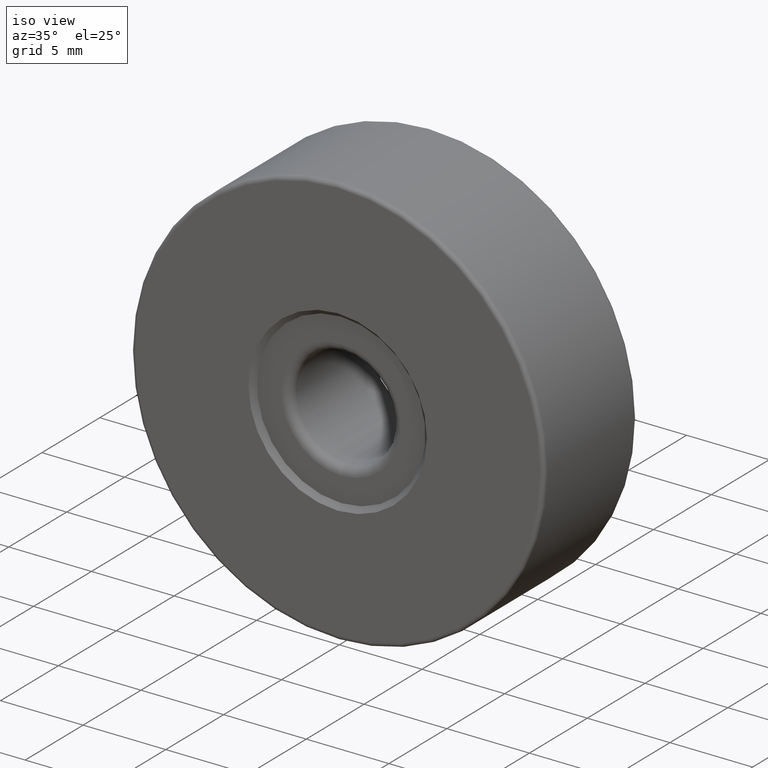
[diagram: clean part render]
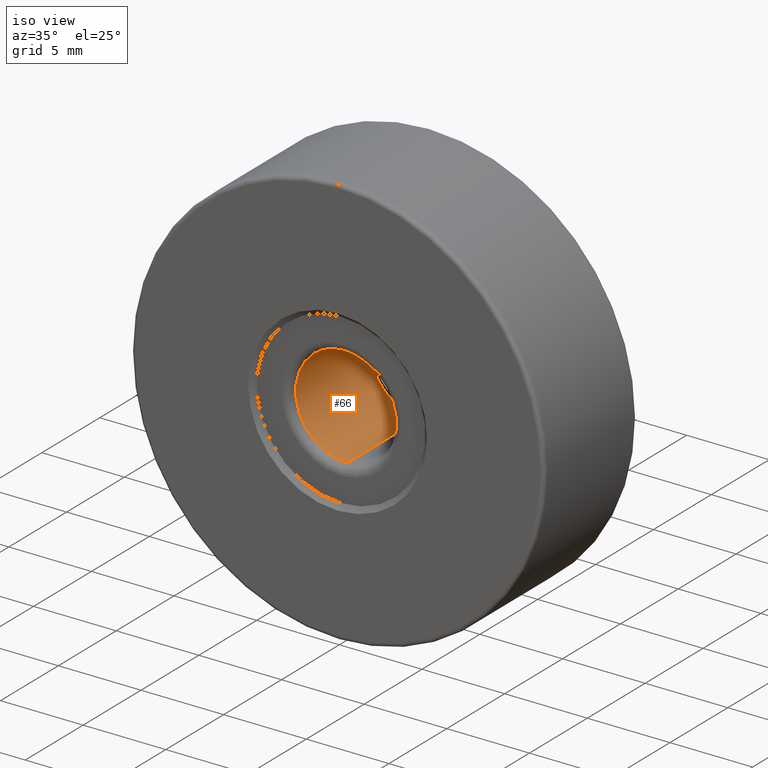
[diagram: same view with one face highlighted and labeled with its STEP entity id]
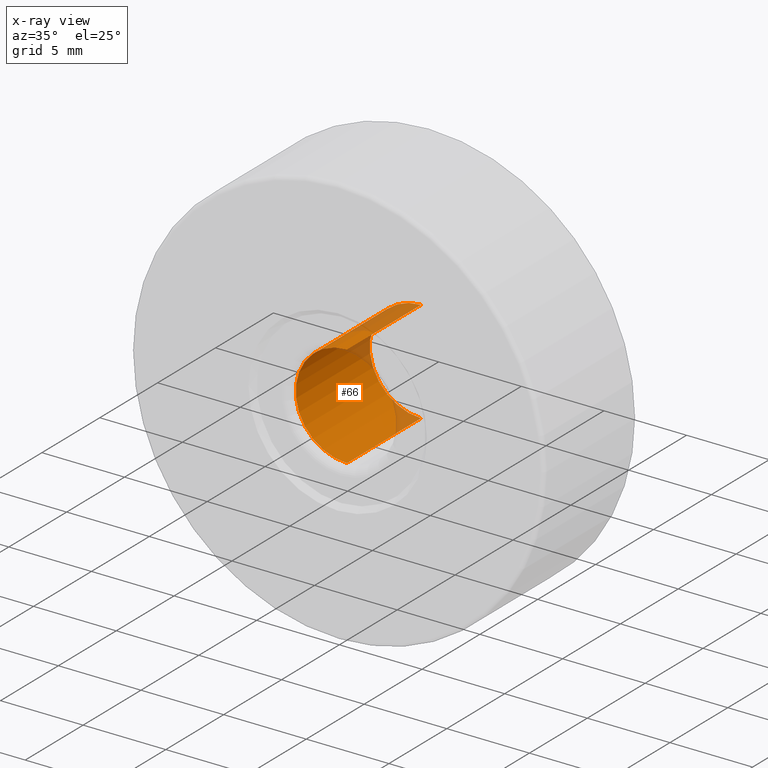
[diagram: x-ray of the same camera — body ghosted, the highlighted face saturated]
A machine part, iso view. The second image highlights one B-rep face of the part: STEP entity #66.
The next image is the same camera in x-ray: the body ghosted, the highlighted face saturated — about 15% of this face is hidden behind the body in this view.
In plain terms, the highlighted cylindrical surface (partial cylindrical patch) has radius 3.1 mm, axis along (-0, 1, -0).
Its self-contained STEP definition (entity closure, byte-faithful):
#2 = VERTEX_POINT ( 'NONE', #334 ) ;
#29 = AXIS2_PLACEMENT_3D ( 'NONE', #469, #50, #424 ) ;
#50 = DIRECTION ( 'NONE',  ( 0.0000000000000000000, -1.000000000000000000, 0.0000000000000000000 ) ) ;
#66 = ADVANCED_FACE ( 'NONE', ( #545 ), #446, .F. ) ;
#95 = EDGE_CURVE ( 'NONE', #421, #558, #226, .T. ) ;
#140 = DIRECTION ( 'NONE',  ( -0.0000000000000000000, 1.000000000000000000, -0.0000000000000000000 ) ) ;
#187 = VERTEX_POINT ( 'NONE', #221 ) ;
#197 = DIRECTION ( 'NONE',  ( 0.0000000000000000000, 1.000000000000000000, 0.0000000000000000000 ) ) ;
#205 = CARTESIAN_POINT ( 'NONE',  ( -4.682026255059964726, -4.794975976998275158, 28.10000000000000142 ) ) ;
#212 = CARTESIAN_POINT ( 'NONE',  ( -4.682026255059964726, -5.594975976998274980, 25.00000000000000000 ) ) ;
#221 = CARTESIAN_POINT ( 'NONE',  ( -4.682026255059964726, -4.794975976998275158, 21.90000000000000213 ) ) ;
#226 = LINE ( 'NONE', #369, #315 ) ;
#231 = EDGE_LOOP ( 'NONE', ( #359, #416, #474, #340 ) ) ;
#240 = CARTESIAN_POINT ( 'NONE',  ( -4.682026255059964726, 1.605024023001724975, 25.00000000000000000 ) ) ;
#256 = EDGE_CURVE ( 'NONE', #2, #558, #368, .T. ) ;
#279 = CIRCLE ( 'NONE', #29, 3.099999999999998757 ) ;
#308 = DIRECTION ( 'NONE',  ( -0.0000000000000000000, 1.000000000000000000, -0.0000000000000000000 ) ) ;
#315 = VECTOR ( 'NONE', #308, 1000.000000000000000 ) ;
#325 = AXIS2_PLACEMENT_3D ( 'NONE', #240, #197, #526 ) ;
#334 = CARTESIAN_POINT ( 'NONE',  ( -4.682026255059964726, 1.605024023001724975, 21.90000000000000213 ) ) ;
#340 = ORIENTED_EDGE ( 'NONE', *, *, #95, .F. ) ;
#359 = ORIENTED_EDGE ( 'NONE', *, *, #582, .T. ) ;
#368 = CIRCLE ( 'NONE', #325, 3.099999999999998757 ) ;
#369 = CARTESIAN_POINT ( 'NONE',  ( -4.682026255059964726, -5.594975976998274980, 28.10000000000000142 ) ) ;
#370 = CARTESIAN_POINT ( 'NONE',  ( -4.682026255059964726, -5.594975976998274980, 21.90000000000000213 ) ) ;
#382 = CARTESIAN_POINT ( 'NONE',  ( -4.682026255059964726, 1.605024023001724975, 28.10000000000000142 ) ) ;
#416 = ORIENTED_EDGE ( 'NONE', *, *, #536, .T. ) ;
#421 = VERTEX_POINT ( 'NONE', #205 ) ;
#424 = DIRECTION ( 'NONE',  ( 0.0000000000000000000, 0.0000000000000000000, -1.000000000000000000 ) ) ;
#446 = CYLINDRICAL_SURFACE ( 'NONE', #504, 3.099999999999998757 ) ;
#464 = DIRECTION ( 'NONE',  ( -0.0000000000000000000, 1.000000000000000000, -0.0000000000000000000 ) ) ;
#469 = CARTESIAN_POINT ( 'NONE',  ( -4.682026255059964726, -4.794975976998275158, 25.00000000000000000 ) ) ;
#474 = ORIENTED_EDGE ( 'NONE', *, *, #256, .T. ) ;
#504 = AXIS2_PLACEMENT_3D ( 'NONE', #212, #464, #610 ) ;
#526 = DIRECTION ( 'NONE',  ( 0.0000000000000000000, 0.0000000000000000000, 1.000000000000000000 ) ) ;
#536 = EDGE_CURVE ( 'NONE', #187, #2, #571, .T. ) ;
#545 = FACE_OUTER_BOUND ( 'NONE', #231, .T. ) ;
#558 = VERTEX_POINT ( 'NONE', #382 ) ;
#571 = LINE ( 'NONE', #370, #601 ) ;
#582 = EDGE_CURVE ( 'NONE', #421, #187, #279, .T. ) ;
#601 = VECTOR ( 'NONE', #140, 1000.000000000000000 ) ;
#610 = DIRECTION ( 'NONE',  ( 0.0000000000000000000, 0.0000000000000000000, 1.000000000000000000 ) ) ;